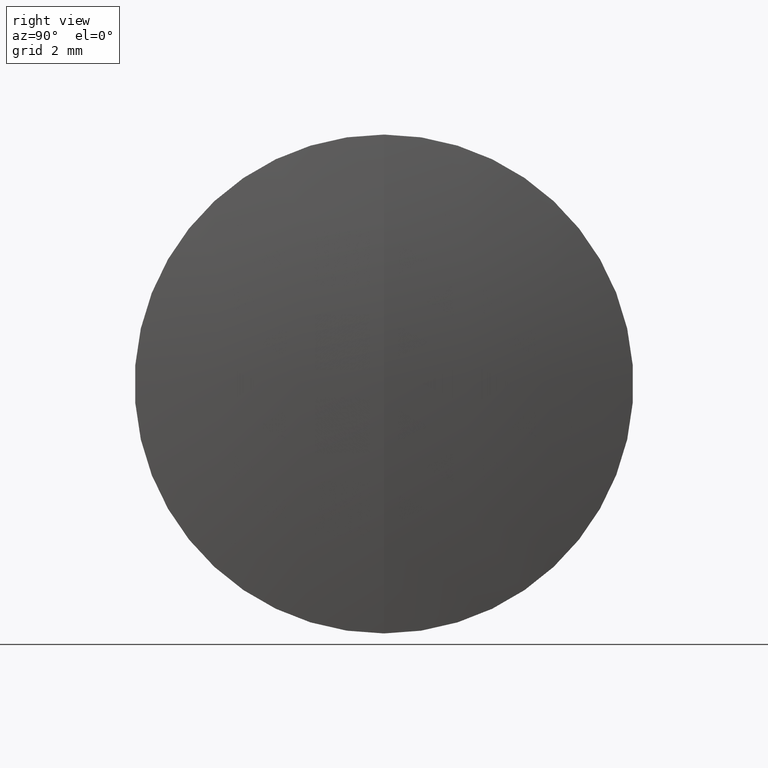
[diagram: clean part render]
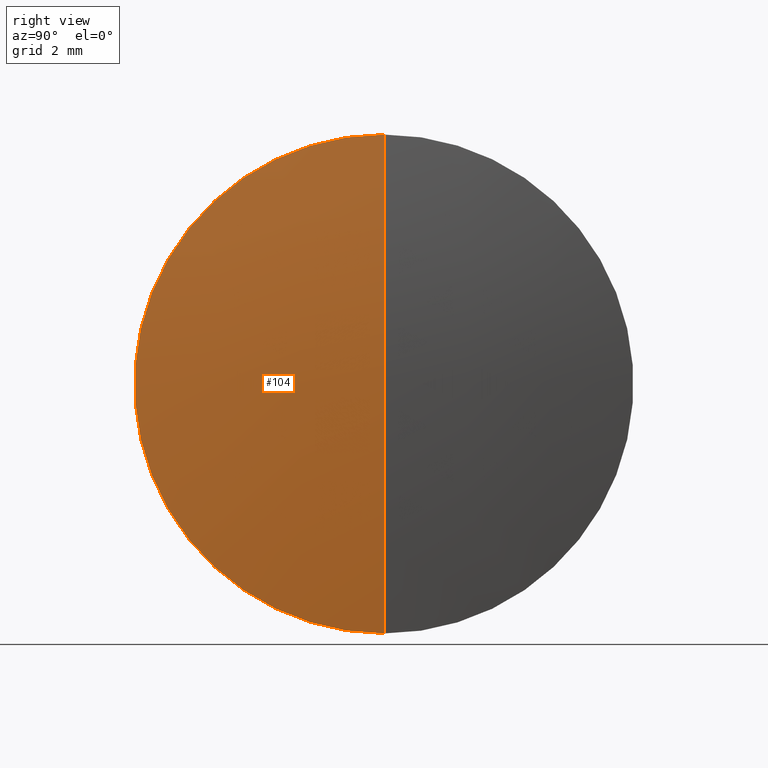
[diagram: same view with one face highlighted and labeled with its STEP entity id]
A machine part, right view. The second image highlights one B-rep face of the part: STEP entity #104.
In plain terms, the highlighted spherical surface has radius 44.2 mm.
Its self-contained STEP definition (entity closure, byte-faithful):
#12 = CARTESIAN_POINT ( 'NONE',  ( 5.419314038603073600, 7.776507174585693100E-016, -6.349999999999999600 ) ) ;
#17 = ORIENTED_EDGE ( 'NONE', *, *, #86, .F. ) ;
#36 = FACE_OUTER_BOUND ( 'NONE', #113, .T. ) ;
#43 = VERTEX_POINT ( 'NONE', #12 ) ;
#47 = ORIENTED_EDGE ( 'NONE', *, *, #192, .T. ) ;
#62 = CARTESIAN_POINT ( 'NONE',  ( 5.419314038603073600, 0.0000000000000000000, 0.0000000000000000000 ) ) ;
#70 = SPHERICAL_SURFACE ( 'NONE', #343, 44.20000000000000300 ) ;
#73 = CIRCLE ( 'NONE', #244, 44.20000000000000300 ) ;
#83 = DIRECTION ( 'NONE',  ( 0.0000000000000000000, 0.0000000000000000000, 1.000000000000000000 ) ) ;
#86 = EDGE_CURVE ( 'NONE', #339, #43, #73, .T. ) ;
#104 = ADVANCED_FACE ( 'NONE', ( #36 ), #70, .T. ) ;
#106 = VERTEX_POINT ( 'NONE', #273 ) ;
#112 = CARTESIAN_POINT ( 'NONE',  ( -38.32217084702924100, 0.0000000000000000000, 0.0000000000000000000 ) ) ;
#113 = EDGE_LOOP ( 'NONE', ( #17, #47, #164 ) ) ;
#131 = DIRECTION ( 'NONE',  ( -1.000000000000000000, -0.0000000000000000000, -0.0000000000000000000 ) ) ;
#149 = AXIS2_PLACEMENT_3D ( 'NONE', #248, #189, #241 ) ;
#150 = DIRECTION ( 'NONE',  ( 0.0000000000000000000, 1.000000000000000000, 0.0000000000000000000 ) ) ;
#154 = CARTESIAN_POINT ( 'NONE',  ( 5.877829152970762500, 0.0000000000000000000, 2.706469426115651000E-015 ) ) ;
#164 = ORIENTED_EDGE ( 'NONE', *, *, #328, .F. ) ;
#189 = DIRECTION ( 'NONE',  ( 0.0000000000000000000, -1.000000000000000000, 0.0000000000000000000 ) ) ;
#192 = EDGE_CURVE ( 'NONE', #339, #106, #213, .T. ) ;
#213 = CIRCLE ( 'NONE', #149, 44.20000000000000300 ) ;
#241 = DIRECTION ( 'NONE',  ( 0.0000000000000000000, 0.0000000000000000000, -1.000000000000000000 ) ) ;
#242 = DIRECTION ( 'NONE',  ( 0.0000000000000000000, -1.224646799147353200E-016, 1.000000000000000000 ) ) ;
#244 = AXIS2_PLACEMENT_3D ( 'NONE', #112, #272, #242 ) ;
#248 = CARTESIAN_POINT ( 'NONE',  ( -38.32217084702924100, 0.0000000000000000000, 0.0000000000000000000 ) ) ;
#265 = AXIS2_PLACEMENT_3D ( 'NONE', #62, #131, #83 ) ;
#268 = CIRCLE ( 'NONE', #265, 6.349999999999999600 ) ;
#272 = DIRECTION ( 'NONE',  ( -0.0000000000000000000, 1.000000000000000000, 1.224646799147353200E-016 ) ) ;
#273 = CARTESIAN_POINT ( 'NONE',  ( 5.419314038603073600, 0.0000000000000000000, 6.349999999999999600 ) ) ;
#327 = CARTESIAN_POINT ( 'NONE',  ( -38.32217084702924100, 0.0000000000000000000, 0.0000000000000000000 ) ) ;
#328 = EDGE_CURVE ( 'NONE', #43, #106, #268, .T. ) ;
#330 = DIRECTION ( 'NONE',  ( 0.0000000000000000000, 0.0000000000000000000, 1.000000000000000000 ) ) ;
#339 = VERTEX_POINT ( 'NONE', #154 ) ;
#343 = AXIS2_PLACEMENT_3D ( 'NONE', #327, #150, #330 ) ;